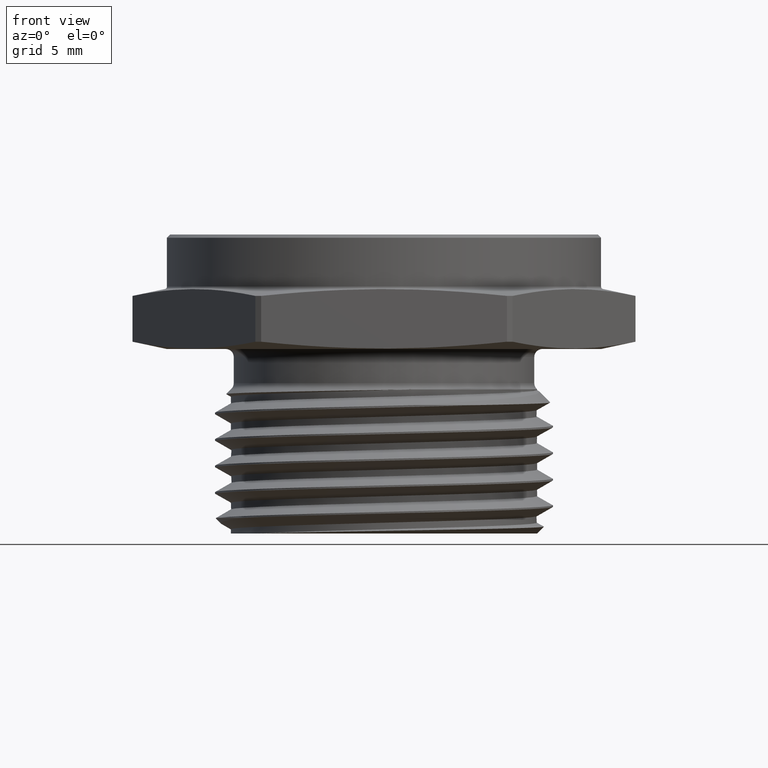
[diagram: clean part render]
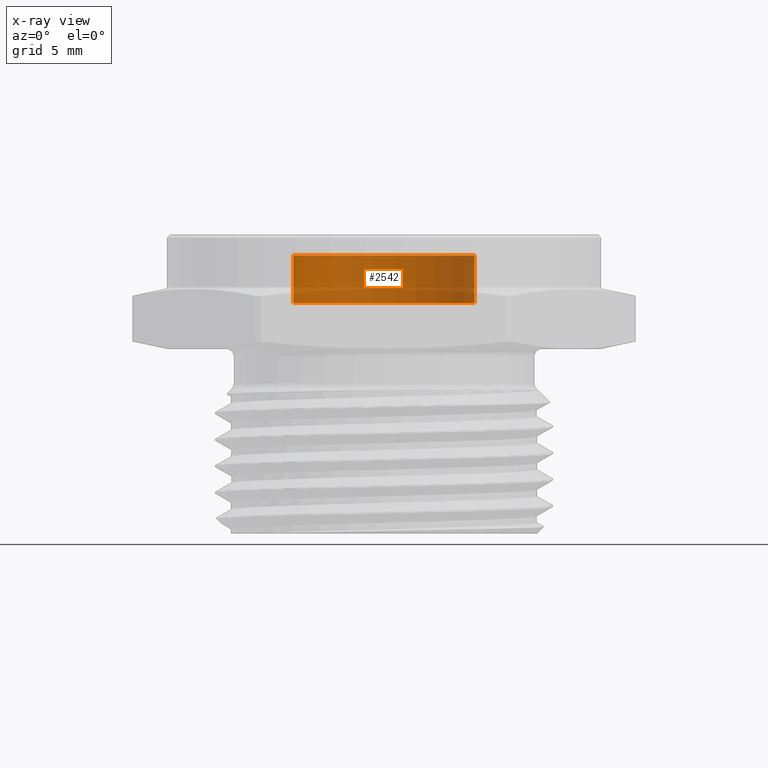
[diagram: x-ray — body ghosted, one internal face saturated and labeled with its STEP entity id]
A machine part, front view, then the same camera in x-ray: the body is ghosted and one INTERNAL B-rep face — a face not visible from any outside direction — is saturated and labeled: STEP entity #2542.
In plain terms, the highlighted cylindrical surface (partial cylindrical patch) has radius 7.239 mm, axis along (-0, -0, 1).
Its self-contained STEP definition (entity closure, byte-faithful):
#36 = VERTEX_POINT ( 'NONE', #2762 ) ;
#90 = ORIENTED_EDGE ( 'NONE', *, *, #2458, .F. ) ;
#91 = ORIENTED_EDGE ( 'NONE', *, *, #2457, .T. ) ;
#96 = ORIENTED_EDGE ( 'NONE', *, *, #2456, .F. ) ;
#98 = ORIENTED_EDGE ( 'NONE', *, *, #2455, .T. ) ;
#604 = DIRECTION ( 'NONE',  ( 1.000000000000000000, 0.0000000000000000000, 0.0000000000000000000 ) ) ;
#605 = CARTESIAN_POINT ( 'NONE',  ( 0.0000000000000000000, 0.0000000000000000000, 0.1440000000000000200 ) ) ;
#606 = DIRECTION ( 'NONE',  ( -0.0000000000000000000, -0.0000000000000000000, 1.000000000000000000 ) ) ;
#777 = EDGE_LOOP ( 'NONE', ( #96, #98, #91, #90 ) ) ;
#936 = AXIS2_PLACEMENT_3D ( 'NONE', #1124, #1125, #1126 ) ;
#937 = AXIS2_PLACEMENT_3D ( 'NONE', #1127, #1128, #1129 ) ;
#949 = AXIS2_PLACEMENT_3D ( 'NONE', #605, #606, #604 ) ;
#1120 = CARTESIAN_POINT ( 'NONE',  ( -0.2849999999999999800, 3.490243377569955100E-017, 0.1440000000000000200 ) ) ;
#1121 = DIRECTION ( 'NONE',  ( -0.0000000000000000000, -0.0000000000000000000, 1.000000000000000000 ) ) ;
#1122 = CARTESIAN_POINT ( 'NONE',  ( 0.2849999999999999800, 0.0000000000000000000, 0.1440000000000000200 ) ) ;
#1123 = DIRECTION ( 'NONE',  ( -0.0000000000000000000, -0.0000000000000000000, 1.000000000000000000 ) ) ;
#1124 = CARTESIAN_POINT ( 'NONE',  ( 0.0000000000000000000, 0.0000000000000000000, 0.1440000000000000200 ) ) ;
#1125 = DIRECTION ( 'NONE',  ( 0.0000000000000000000, 0.0000000000000000000, -1.000000000000000000 ) ) ;
#1126 = DIRECTION ( 'NONE',  ( -1.000000000000000000, 0.0000000000000000000, 0.0000000000000000000 ) ) ;
#1127 = CARTESIAN_POINT ( 'NONE',  ( 0.0000000000000000000, 0.0000000000000000000, 0.2939999999999999800 ) ) ;
#1128 = DIRECTION ( 'NONE',  ( 0.0000000000000000000, 0.0000000000000000000, -1.000000000000000000 ) ) ;
#1129 = DIRECTION ( 'NONE',  ( -1.000000000000000000, 0.0000000000000000000, 0.0000000000000000000 ) ) ;
#1875 = CIRCLE ( 'NONE', #936, 0.2849999999999999800 ) ;
#1876 = LINE ( 'NONE', #1120, #1878 ) ;
#1877 = CIRCLE ( 'NONE', #937, 0.2849999999999999800 ) ;
#1878 = VECTOR ( 'NONE', #1121, 39.37007874015748100 ) ;
#1880 = LINE ( 'NONE', #1122, #1882 ) ;
#1882 = VECTOR ( 'NONE', #1123, 39.37007874015748100 ) ;
#1902 = CYLINDRICAL_SURFACE ( 'NONE', #949, 0.2849999999999999800 ) ;
#1906 = FACE_OUTER_BOUND ( 'NONE', #777, .T. ) ;
#2230 = VERTEX_POINT ( 'NONE', #2802 ) ;
#2294 = VERTEX_POINT ( 'NONE', #2765 ) ;
#2310 = VERTEX_POINT ( 'NONE', #2746 ) ;
#2455 = EDGE_CURVE ( 'NONE', #36, #2294, #1876, .T. ) ;
#2456 = EDGE_CURVE ( 'NONE', #36, #2230, #1875, .T. ) ;
#2457 = EDGE_CURVE ( 'NONE', #2294, #2310, #1877, .T. ) ;
#2458 = EDGE_CURVE ( 'NONE', #2230, #2310, #1880, .T. ) ;
#2542 = ADVANCED_FACE ( 'NONE', ( #1906 ), #1902, .T. ) ;
#2746 = CARTESIAN_POINT ( 'NONE',  ( 0.2849999999999999800, 0.0000000000000000000, 0.2939999999999999800 ) ) ;
#2762 = CARTESIAN_POINT ( 'NONE',  ( -0.2849999999999999800, 3.490243377569955100E-017, 0.1440000000000000200 ) ) ;
#2765 = CARTESIAN_POINT ( 'NONE',  ( -0.2849999999999999800, 3.490243377569955100E-017, 0.2939999999999999800 ) ) ;
#2802 = CARTESIAN_POINT ( 'NONE',  ( 0.2849999999999999800, 0.0000000000000000000, 0.1440000000000000200 ) ) ;